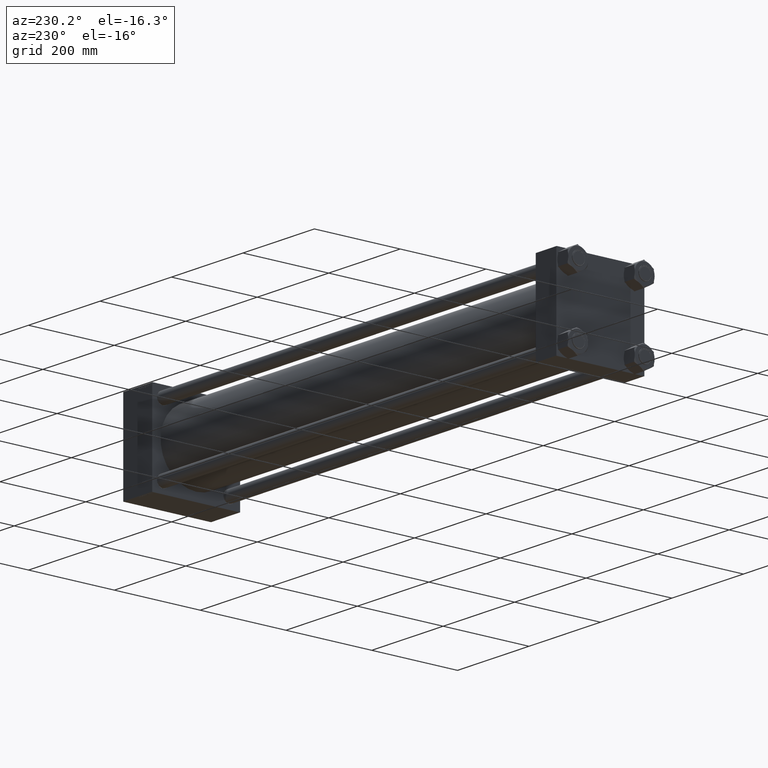
[diagram: clean part render]
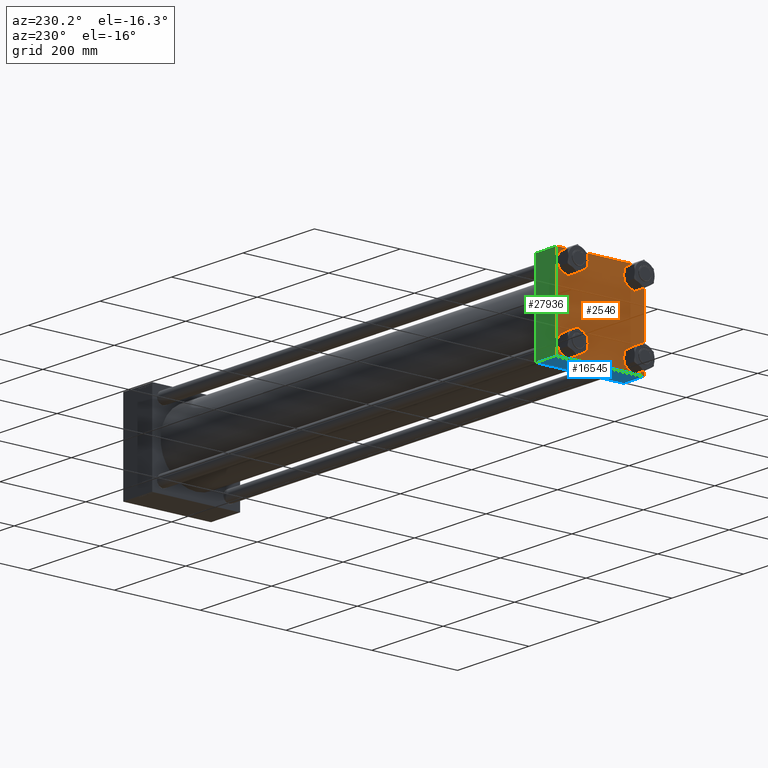
[diagram: same view with three faces highlighted in distinct colors, each labeled with its STEP entity id]
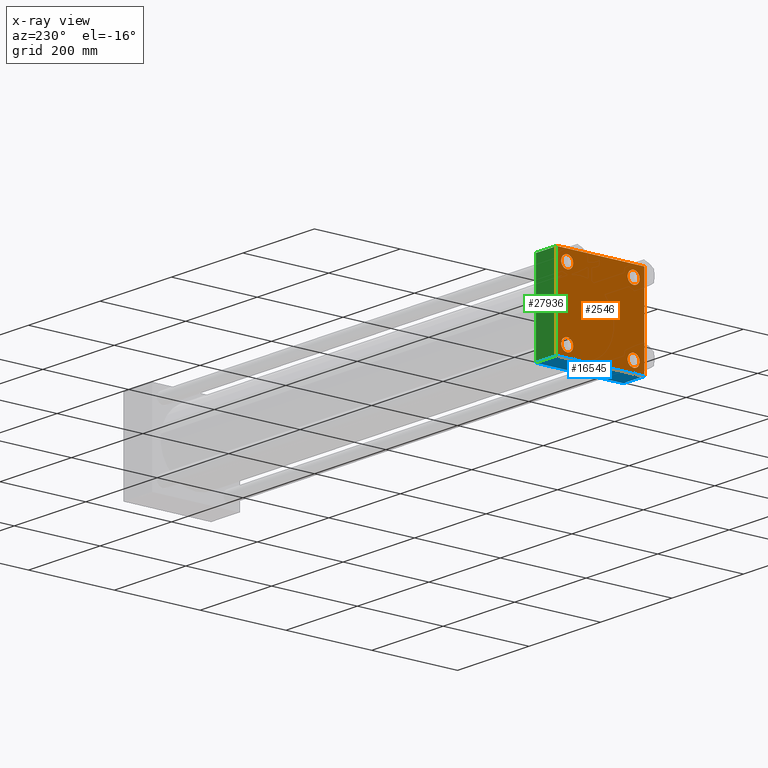
[diagram: x-ray of the same camera — body ghosted, the three highlighted faces saturated]
A machine part, auxiliary view with three faces highlighted in distinct colors.
The next image is the same camera in x-ray (body ghosted, the three faces saturated) — at least one of them is partly hidden behind the body in this view.
Their STEP definitions:

[orange] entity #2546 — the highlighted planar face has unit normal (-1, 0, 0).
#272 = ORIENTED_EDGE ( 'NONE', *, *, #671, .F. ) ;
#664 = EDGE_CURVE ( 'NONE', #2075, #12357, #25848, .T. ) ;
#671 = EDGE_CURVE ( 'NONE', #37617, #7125, #13395, .T. ) ;
#861 = EDGE_LOOP ( 'NONE', ( #29439, #20823 ) ) ;
#1020 = CARTESIAN_POINT ( 'NONE',  ( 0.000000000000000000, -77.44999999999996021, 91.45000000000015916 ) ) ;
#1324 = DIRECTION ( 'NONE',  ( 1.000000000000000000, -0.000000000000000000, -0.000000000000000000 ) ) ;
#1736 = CARTESIAN_POINT ( 'NONE',  ( 0.000000000000000000, 102.0000000000000142, -102.4999999999999716 ) ) ;
#2075 = VERTEX_POINT ( 'NONE', #1020 ) ;
#2339 = CARTESIAN_POINT ( 'NONE',  ( 0.000000000000000000, -102.4999999999999716, 102.5000000000000000 ) ) ;
#2546 = ADVANCED_FACE ( 'NONE', ( #39592, #16748, #23961, #20100, #40096 ), #43440, .T. ) ;
#2981 = CIRCLE ( 'NONE', #41526, 14.00000000000012434 ) ;
#3689 = AXIS2_PLACEMENT_3D ( 'NONE', #29311, #1324, #5177 ) ;
#3960 = CARTESIAN_POINT ( 'NONE',  ( 0.000000000000000000, -77.44999999999996021, 63.44999999999991047 ) ) ;
#4056 = VECTOR ( 'NONE', #11398, 1000.000000000000114 ) ;
#4261 = DIRECTION ( 'NONE',  ( 0.000000000000000000, 0.000000000000000000, 1.000000000000000000 ) ) ;
#4287 = CIRCLE ( 'NONE', #27239, 14.00000000000012434 ) ;
#4748 = CARTESIAN_POINT ( 'NONE',  ( 0.000000000000000000, 77.44999999999998863, -63.44999999999989626 ) ) ;
#4897 = AXIS2_PLACEMENT_3D ( 'NONE', #44666, #9527, #48761 ) ;
#4934 = EDGE_LOOP ( 'NONE', ( #37866, #13012 ) ) ;
#5147 = DIRECTION ( 'NONE',  ( -0.000000000000000000, 0.7071067811865474617, 0.7071067811865474617 ) ) ;
#5177 = DIRECTION ( 'NONE',  ( 0.000000000000000000, 0.000000000000000000, 1.000000000000000000 ) ) ;
#5234 = CARTESIAN_POINT ( 'NONE',  ( 0.000000000000000000, 102.5000000000000284, 102.5000000000000284 ) ) ;
#5798 = CARTESIAN_POINT ( 'NONE',  ( 0.000000000000000000, 77.44999999999998863, 63.44999999999989626 ) ) ;
#6224 = ORIENTED_EDGE ( 'NONE', *, *, #9555, .T. ) ;
#6595 = CARTESIAN_POINT ( 'NONE',  ( 0.000000000000000000, -77.44999999999996021, -91.45000000000015916 ) ) ;
#7125 = VERTEX_POINT ( 'NONE', #43836 ) ;
#7174 = DIRECTION ( 'NONE',  ( 0.000000000000000000, -1.000000000000000000, -1.353930517835556727E-16 ) ) ;
#7304 = DIRECTION ( 'NONE',  ( 0.000000000000000000, -0.7071067811865474617, 0.7071067811865474617 ) ) ;
#7432 = LINE ( 'NONE', #38734, #9821 ) ;
#7577 = ORIENTED_EDGE ( 'NONE', *, *, #45853, .F. ) ;
#7718 = VECTOR ( 'NONE', #7304, 1000.000000000000114 ) ;
#8162 = DIRECTION ( 'NONE',  ( 1.000000000000000000, -0.000000000000000000, -0.000000000000000000 ) ) ;
#8911 = CARTESIAN_POINT ( 'NONE',  ( 0.000000000000000000, 102.5000000000000284, 102.0000000000000142 ) ) ;
#9527 = DIRECTION ( 'NONE',  ( 1.000000000000000000, -0.000000000000000000, -0.000000000000000000 ) ) ;
#9555 = EDGE_CURVE ( 'NONE', #12357, #2075, #20401, .T. ) ;
#9821 = VECTOR ( 'NONE', #7174, 1000.000000000000000 ) ;
#10237 = VERTEX_POINT ( 'NONE', #4748 ) ;
#10466 = CARTESIAN_POINT ( 'NONE',  ( 0.000000000000000000, -101.9999999999999432, -102.5000000000000000 ) ) ;
#11157 = LINE ( 'NONE', #15263, #7718 ) ;
#11240 = VERTEX_POINT ( 'NONE', #1736 ) ;
#11247 = EDGE_LOOP ( 'NONE', ( #43053, #6224 ) ) ;
#11312 = EDGE_CURVE ( 'NONE', #19204, #11240, #42437, .T. ) ;
#11398 = DIRECTION ( 'NONE',  ( -0.000000000000000000, -0.7071067811865474617, -0.7071067811865474617 ) ) ;
#11940 = DIRECTION ( 'NONE',  ( 0.000000000000000000, 0.000000000000000000, 1.000000000000000000 ) ) ;
#12212 = DIRECTION ( 'NONE',  ( 1.000000000000000000, -0.000000000000000000, -0.000000000000000000 ) ) ;
#12251 = ORIENTED_EDGE ( 'NONE', *, *, #11312, .T. ) ;
#12357 = VERTEX_POINT ( 'NONE', #3960 ) ;
#13012 = ORIENTED_EDGE ( 'NONE', *, *, #22313, .T. ) ;
#13395 = LINE ( 'NONE', #2339, #44646 ) ;
#13704 = ORIENTED_EDGE ( 'NONE', *, *, #43252, .T. ) ;
#13924 = CIRCLE ( 'NONE', #4897, 14.00000000000012434 ) ;
#13953 = DIRECTION ( 'NONE',  ( 0.000000000000000000, -1.000000000000000000, -1.353930517835556973E-16 ) ) ;
#14699 = ORIENTED_EDGE ( 'NONE', *, *, #50179, .T. ) ;
#15263 = CARTESIAN_POINT ( 'NONE',  ( 0.000000000000000000, -102.2499999999999716, -102.2499999999999716 ) ) ;
#15605 = VECTOR ( 'NONE', #13953, 1000.000000000000000 ) ;
#15982 = EDGE_CURVE ( 'NONE', #45626, #20567, #47539, .T. ) ;
#16039 = CARTESIAN_POINT ( 'NONE',  ( 0.000000000000000000, -77.44999999999996021, 77.45000000000003126 ) ) ;
#16237 = CARTESIAN_POINT ( 'NONE',  ( 0.000000000000000000, 0.000000000000000000, 0.000000000000000000 ) ) ;
#16560 = CARTESIAN_POINT ( 'NONE',  ( 0.000000000000000000, 102.5000000000000284, 102.5000000000000284 ) ) ;
#16748 = FACE_BOUND ( 'NONE', #46591, .T. ) ;
#17716 = AXIS2_PLACEMENT_3D ( 'NONE', #23431, #24178, #19568 ) ;
#18512 = CARTESIAN_POINT ( 'NONE',  ( 0.000000000000000000, 102.2500000000000142, 102.2500000000000142 ) ) ;
#18762 = DIRECTION ( 'NONE',  ( 0.000000000000000000, 0.7071067811865474617, -0.7071067811865474617 ) ) ;
#19204 = VERTEX_POINT ( 'NONE', #43638 ) ;
#19568 = DIRECTION ( 'NONE',  ( 0.000000000000000000, 0.000000000000000000, 1.000000000000000000 ) ) ;
#20100 = FACE_BOUND ( 'NONE', #861, .T. ) ;
#20401 = CIRCLE ( 'NONE', #23675, 14.00000000000012434 ) ;
#20567 = VERTEX_POINT ( 'NONE', #40508 ) ;
#20823 = ORIENTED_EDGE ( 'NONE', *, *, #15982, .T. ) ;
#20889 = ORIENTED_EDGE ( 'NONE', *, *, #30774, .T. ) ;
#21415 = ORIENTED_EDGE ( 'NONE', *, *, #33142, .T. ) ;
#21835 = CIRCLE ( 'NONE', #17716, 14.00000000000012434 ) ;
#22313 = EDGE_CURVE ( 'NONE', #46702, #10237, #41050, .T. ) ;
#22630 = LINE ( 'NONE', #18512, #26597 ) ;
#22649 = AXIS2_PLACEMENT_3D ( 'NONE', #16237, #28828, #44191 ) ;
#22962 = CARTESIAN_POINT ( 'NONE',  ( 0.000000000000000000, 102.2500000000000000, -102.2500000000000000 ) ) ;
#23431 = CARTESIAN_POINT ( 'NONE',  ( 0.000000000000000000, 77.44999999999998863, 77.45000000000001705 ) ) ;
#23675 = AXIS2_PLACEMENT_3D ( 'NONE', #16039, #31464, #11940 ) ;
#23750 = DIRECTION ( 'NONE',  ( 1.000000000000000000, -0.000000000000000000, -0.000000000000000000 ) ) ;
#23773 = LINE ( 'NONE', #16560, #28291 ) ;
#23837 = DIRECTION ( 'NONE',  ( 0.000000000000000000, 0.000000000000000000, 1.000000000000000000 ) ) ;
#23961 = FACE_BOUND ( 'NONE', #4934, .T. ) ;
#23997 = ORIENTED_EDGE ( 'NONE', *, *, #30301, .T. ) ;
#24178 = DIRECTION ( 'NONE',  ( 1.000000000000000000, -0.000000000000000000, -0.000000000000000000 ) ) ;
#25848 = CIRCLE ( 'NONE', #3689, 14.00000000000012434 ) ;
#26597 = VECTOR ( 'NONE', #18762, 1000.000000000000114 ) ;
#27239 = AXIS2_PLACEMENT_3D ( 'NONE', #28193, #8162, #23837 ) ;
#27532 = EDGE_LOOP ( 'NONE', ( #20889, #12251, #50662, #21415, #272, #13704, #7577, #23997 ) ) ;
#27876 = DIRECTION ( 'NONE',  ( 0.000000000000000000, 0.000000000000000000, -1.000000000000000000 ) ) ;
#28193 = CARTESIAN_POINT ( 'NONE',  ( 0.000000000000000000, -77.44999999999996021, -77.45000000000003126 ) ) ;
#28291 = VECTOR ( 'NONE', #27876, 1000.000000000000000 ) ;
#28828 = DIRECTION ( 'NONE',  ( -1.000000000000000000, 0.000000000000000000, 0.000000000000000000 ) ) ;
#29311 = CARTESIAN_POINT ( 'NONE',  ( 0.000000000000000000, -77.44999999999996021, 77.45000000000003126 ) ) ;
#29439 = ORIENTED_EDGE ( 'NONE', *, *, #38336, .T. ) ;
#29506 = AXIS2_PLACEMENT_3D ( 'NONE', #39120, #23750, #35544 ) ;
#30301 = EDGE_CURVE ( 'NONE', #47971, #48162, #22630, .T. ) ;
#30774 = EDGE_CURVE ( 'NONE', #48162, #19204, #23773, .T. ) ;
#31464 = DIRECTION ( 'NONE',  ( 1.000000000000000000, -0.000000000000000000, -0.000000000000000000 ) ) ;
#31982 = CARTESIAN_POINT ( 'NONE',  ( 0.000000000000000000, 77.44999999999998863, -77.45000000000001705 ) ) ;
#32403 = CARTESIAN_POINT ( 'NONE',  ( 0.000000000000000000, 77.44999999999998863, -77.45000000000001705 ) ) ;
#33142 = EDGE_CURVE ( 'NONE', #43710, #7125, #11157, .T. ) ;
#35086 = CARTESIAN_POINT ( 'NONE',  ( 0.000000000000000000, -102.4999999999999716, 102.0000000000000000 ) ) ;
#35544 = DIRECTION ( 'NONE',  ( 0.000000000000000000, 0.000000000000000000, 1.000000000000000000 ) ) ;
#35548 = CARTESIAN_POINT ( 'NONE',  ( 0.000000000000000000, 77.44999999999998863, -91.45000000000014495 ) ) ;
#35699 = CARTESIAN_POINT ( 'NONE',  ( 0.000000000000000000, -102.2499999999999716, 102.2499999999999716 ) ) ;
#36285 = LINE ( 'NONE', #5234, #15605 ) ;
#36482 = DIRECTION ( 'NONE',  ( 0.000000000000000000, 0.000000000000000000, 1.000000000000000000 ) ) ;
#36605 = VERTEX_POINT ( 'NONE', #6595 ) ;
#36700 = LINE ( 'NONE', #35699, #49103 ) ;
#37303 = CARTESIAN_POINT ( 'NONE',  ( 0.000000000000000000, 102.0000000000000142, 102.5000000000000284 ) ) ;
#37617 = VERTEX_POINT ( 'NONE', #35086 ) ;
#37866 = ORIENTED_EDGE ( 'NONE', *, *, #39265, .T. ) ;
#38111 = ORIENTED_EDGE ( 'NONE', *, *, #44477, .T. ) ;
#38336 = EDGE_CURVE ( 'NONE', #20567, #45626, #21835, .T. ) ;
#38734 = CARTESIAN_POINT ( 'NONE',  ( 0.000000000000000000, 102.5000000000000284, -102.4999999999999716 ) ) ;
#39120 = CARTESIAN_POINT ( 'NONE',  ( 0.000000000000000000, 77.44999999999998863, 77.45000000000001705 ) ) ;
#39265 = EDGE_CURVE ( 'NONE', #10237, #46702, #2981, .T. ) ;
#39592 = FACE_BOUND ( 'NONE', #11247, .T. ) ;
#40096 = FACE_OUTER_BOUND ( 'NONE', #27532, .T. ) ;
#40283 = CARTESIAN_POINT ( 'NONE',  ( 0.000000000000000000, -77.44999999999996021, -63.44999999999991047 ) ) ;
#40508 = CARTESIAN_POINT ( 'NONE',  ( 0.000000000000000000, 77.44999999999998863, 91.45000000000014495 ) ) ;
#40585 = DIRECTION ( 'NONE',  ( 1.000000000000000000, -0.000000000000000000, -0.000000000000000000 ) ) ;
#40820 = VERTEX_POINT ( 'NONE', #46432 ) ;
#41050 = CIRCLE ( 'NONE', #41896, 14.00000000000012434 ) ;
#41526 = AXIS2_PLACEMENT_3D ( 'NONE', #31982, #12212, #4261 ) ;
#41896 = AXIS2_PLACEMENT_3D ( 'NONE', #32403, #40585, #36482 ) ;
#42437 = LINE ( 'NONE', #22962, #4056 ) ;
#43053 = ORIENTED_EDGE ( 'NONE', *, *, #664, .T. ) ;
#43252 = EDGE_CURVE ( 'NONE', #37617, #40820, #36700, .T. ) ;
#43440 = PLANE ( 'NONE',  #22649 ) ;
#43638 = CARTESIAN_POINT ( 'NONE',  ( 0.000000000000000000, 102.5000000000000284, -101.9999999999999147 ) ) ;
#43710 = VERTEX_POINT ( 'NONE', #10466 ) ;
#43836 = CARTESIAN_POINT ( 'NONE',  ( 0.000000000000000000, -102.5000000000000000, -101.9999999999998863 ) ) ;
#44191 = DIRECTION ( 'NONE',  ( 0.000000000000000000, 0.000000000000000000, 1.000000000000000000 ) ) ;
#44477 = EDGE_CURVE ( 'NONE', #36605, #48847, #13924, .T. ) ;
#44646 = VECTOR ( 'NONE', #48783, 1000.000000000000000 ) ;
#44666 = CARTESIAN_POINT ( 'NONE',  ( 0.000000000000000000, -77.44999999999996021, -77.45000000000003126 ) ) ;
#44750 = EDGE_CURVE ( 'NONE', #11240, #43710, #7432, .T. ) ;
#45626 = VERTEX_POINT ( 'NONE', #5798 ) ;
#45853 = EDGE_CURVE ( 'NONE', #47971, #40820, #36285, .T. ) ;
#46432 = CARTESIAN_POINT ( 'NONE',  ( 0.000000000000000000, -101.9999999999999147, 102.5000000000000000 ) ) ;
#46591 = EDGE_LOOP ( 'NONE', ( #14699, #38111 ) ) ;
#46702 = VERTEX_POINT ( 'NONE', #35548 ) ;
#47539 = CIRCLE ( 'NONE', #29506, 14.00000000000012434 ) ;
#47971 = VERTEX_POINT ( 'NONE', #37303 ) ;
#48162 = VERTEX_POINT ( 'NONE', #8911 ) ;
#48761 = DIRECTION ( 'NONE',  ( 0.000000000000000000, 0.000000000000000000, 1.000000000000000000 ) ) ;
#48783 = DIRECTION ( 'NONE',  ( 0.000000000000000000, -1.353930517835556973E-16, -1.000000000000000000 ) ) ;
#48847 = VERTEX_POINT ( 'NONE', #40283 ) ;
#49103 = VECTOR ( 'NONE', #5147, 1000.000000000000114 ) ;
#50179 = EDGE_CURVE ( 'NONE', #48847, #36605, #4287, .T. ) ;
#50662 = ORIENTED_EDGE ( 'NONE', *, *, #44750, .T. ) ;

[blue] entity #16545 — the highlighted planar face has unit normal (0, 0, -1).
#937 = CARTESIAN_POINT ( 'NONE',  ( 58.00000000000000000, 102.5000000000000284, -102.4999999999999716 ) ) ;
#1431 = LINE ( 'NONE', #32765, #14537 ) ;
#1736 = CARTESIAN_POINT ( 'NONE',  ( 0.000000000000000000, 102.0000000000000142, -102.4999999999999716 ) ) ;
#3324 = ORIENTED_EDGE ( 'NONE', *, *, #40924, .T. ) ;
#3512 = EDGE_CURVE ( 'NONE', #11240, #17372, #10392, .T. ) ;
#5227 = VECTOR ( 'NONE', #37933, 1000.000000000000000 ) ;
#7174 = DIRECTION ( 'NONE',  ( 0.000000000000000000, -1.000000000000000000, -1.353930517835556727E-16 ) ) ;
#7432 = LINE ( 'NONE', #38734, #9821 ) ;
#8905 = FACE_OUTER_BOUND ( 'NONE', #45371, .T. ) ;
#9049 = AXIS2_PLACEMENT_3D ( 'NONE', #937, #22865, #38488 ) ;
#9821 = VECTOR ( 'NONE', #7174, 1000.000000000000000 ) ;
#10374 = CARTESIAN_POINT ( 'NONE',  ( 58.00000000000000000, -101.9999999999999432, -102.5000000000000000 ) ) ;
#10392 = LINE ( 'NONE', #17834, #33309 ) ;
#10466 = CARTESIAN_POINT ( 'NONE',  ( 0.000000000000000000, -101.9999999999999432, -102.5000000000000000 ) ) ;
#11240 = VERTEX_POINT ( 'NONE', #1736 ) ;
#11249 = CARTESIAN_POINT ( 'NONE',  ( 58.00000000000000000, 102.5000000000000284, -102.4999999999999716 ) ) ;
#12119 = ORIENTED_EDGE ( 'NONE', *, *, #3512, .T. ) ;
#12584 = ORIENTED_EDGE ( 'NONE', *, *, #44750, .F. ) ;
#14537 = VECTOR ( 'NONE', #17595, 1000.000000000000000 ) ;
#16545 = ADVANCED_FACE ( 'NONE', ( #8905 ), #32024, .T. ) ;
#17372 = VERTEX_POINT ( 'NONE', #49230 ) ;
#17595 = DIRECTION ( 'NONE',  ( -1.000000000000000000, 0.000000000000000000, 0.000000000000000000 ) ) ;
#17834 = CARTESIAN_POINT ( 'NONE',  ( 58.00000000000000000, 102.0000000000000142, -102.4999999999999716 ) ) ;
#18600 = DIRECTION ( 'NONE',  ( 1.000000000000000000, 0.000000000000000000, 0.000000000000000000 ) ) ;
#22865 = DIRECTION ( 'NONE',  ( 0.000000000000000000, 1.353930517835556973E-16, -1.000000000000000000 ) ) ;
#26851 = VERTEX_POINT ( 'NONE', #10374 ) ;
#29195 = ORIENTED_EDGE ( 'NONE', *, *, #29270, .T. ) ;
#29270 = EDGE_CURVE ( 'NONE', #17372, #26851, #50244, .T. ) ;
#32024 = PLANE ( 'NONE',  #9049 ) ;
#32765 = CARTESIAN_POINT ( 'NONE',  ( 0.000000000000000000, -101.9999999999999432, -102.5000000000000000 ) ) ;
#33309 = VECTOR ( 'NONE', #18600, 1000.000000000000000 ) ;
#37933 = DIRECTION ( 'NONE',  ( 0.000000000000000000, -1.000000000000000000, -1.353930517835556727E-16 ) ) ;
#38488 = DIRECTION ( 'NONE',  ( 0.000000000000000000, 1.000000000000000000, 1.353930517835556973E-16 ) ) ;
#38734 = CARTESIAN_POINT ( 'NONE',  ( 0.000000000000000000, 102.5000000000000284, -102.4999999999999716 ) ) ;
#40924 = EDGE_CURVE ( 'NONE', #26851, #43710, #1431, .T. ) ;
#43710 = VERTEX_POINT ( 'NONE', #10466 ) ;
#44750 = EDGE_CURVE ( 'NONE', #11240, #43710, #7432, .T. ) ;
#45371 = EDGE_LOOP ( 'NONE', ( #12584, #12119, #29195, #3324 ) ) ;
#49230 = CARTESIAN_POINT ( 'NONE',  ( 58.00000000000000000, 102.0000000000000142, -102.4999999999999716 ) ) ;
#50244 = LINE ( 'NONE', #11249, #5227 ) ;

[green] entity #27936 — the highlighted planar face has unit normal (0, 1, 0).
#984 = DIRECTION ( 'NONE',  ( 1.000000000000000000, 0.000000000000000000, 0.000000000000000000 ) ) ;
#2284 = EDGE_CURVE ( 'NONE', #26507, #6156, #35623, .T. ) ;
#2866 = PLANE ( 'NONE',  #15046 ) ;
#4799 = ORIENTED_EDGE ( 'NONE', *, *, #2284, .T. ) ;
#6156 = VERTEX_POINT ( 'NONE', #31618 ) ;
#6456 = DIRECTION ( 'NONE',  ( -0.000000000000000000, 1.000000000000000000, 0.000000000000000000 ) ) ;
#6831 = CARTESIAN_POINT ( 'NONE',  ( 58.00000000000000000, 102.5000000000000284, 102.0000000000000142 ) ) ;
#7160 = EDGE_CURVE ( 'NONE', #48162, #26507, #19740, .T. ) ;
#7310 = EDGE_LOOP ( 'NONE', ( #4799, #47156, #26964, #24064 ) ) ;
#8911 = CARTESIAN_POINT ( 'NONE',  ( 0.000000000000000000, 102.5000000000000284, 102.0000000000000142 ) ) ;
#11775 = DIRECTION ( 'NONE',  ( 0.000000000000000000, 0.000000000000000000, -1.000000000000000000 ) ) ;
#15046 = AXIS2_PLACEMENT_3D ( 'NONE', #42374, #6456, #18526 ) ;
#15614 = CARTESIAN_POINT ( 'NONE',  ( 58.00000000000000000, 102.5000000000000284, 102.5000000000000284 ) ) ;
#16560 = CARTESIAN_POINT ( 'NONE',  ( 0.000000000000000000, 102.5000000000000284, 102.5000000000000284 ) ) ;
#18526 = DIRECTION ( 'NONE',  ( 0.000000000000000000, -0.000000000000000000, 1.000000000000000000 ) ) ;
#19204 = VERTEX_POINT ( 'NONE', #43638 ) ;
#19740 = LINE ( 'NONE', #24612, #44054 ) ;
#23565 = EDGE_CURVE ( 'NONE', #6156, #19204, #47176, .T. ) ;
#23773 = LINE ( 'NONE', #16560, #28291 ) ;
#24064 = ORIENTED_EDGE ( 'NONE', *, *, #7160, .T. ) ;
#24612 = CARTESIAN_POINT ( 'NONE',  ( 58.00000000000000000, 102.5000000000000284, 102.0000000000000142 ) ) ;
#26507 = VERTEX_POINT ( 'NONE', #6831 ) ;
#26744 = FACE_OUTER_BOUND ( 'NONE', #7310, .T. ) ;
#26964 = ORIENTED_EDGE ( 'NONE', *, *, #30774, .F. ) ;
#27189 = DIRECTION ( 'NONE',  ( -1.000000000000000000, 0.000000000000000000, 0.000000000000000000 ) ) ;
#27693 = CARTESIAN_POINT ( 'NONE',  ( 58.00000000000000000, 102.5000000000000284, -101.9999999999999716 ) ) ;
#27876 = DIRECTION ( 'NONE',  ( 0.000000000000000000, 0.000000000000000000, -1.000000000000000000 ) ) ;
#27936 = ADVANCED_FACE ( 'NONE', ( #26744 ), #2866, .T. ) ;
#28291 = VECTOR ( 'NONE', #27876, 1000.000000000000000 ) ;
#30774 = EDGE_CURVE ( 'NONE', #48162, #19204, #23773, .T. ) ;
#31618 = CARTESIAN_POINT ( 'NONE',  ( 58.00000000000000000, 102.5000000000000284, -101.9999999999999147 ) ) ;
#35623 = LINE ( 'NONE', #15614, #45566 ) ;
#42374 = CARTESIAN_POINT ( 'NONE',  ( 58.00000000000000000, 102.5000000000000284, 102.5000000000000284 ) ) ;
#43638 = CARTESIAN_POINT ( 'NONE',  ( 0.000000000000000000, 102.5000000000000284, -101.9999999999999147 ) ) ;
#44054 = VECTOR ( 'NONE', #984, 1000.000000000000000 ) ;
#45197 = VECTOR ( 'NONE', #27189, 1000.000000000000000 ) ;
#45566 = VECTOR ( 'NONE', #11775, 1000.000000000000000 ) ;
#47156 = ORIENTED_EDGE ( 'NONE', *, *, #23565, .T. ) ;
#47176 = LINE ( 'NONE', #27693, #45197 ) ;
#48162 = VERTEX_POINT ( 'NONE', #8911 ) ;